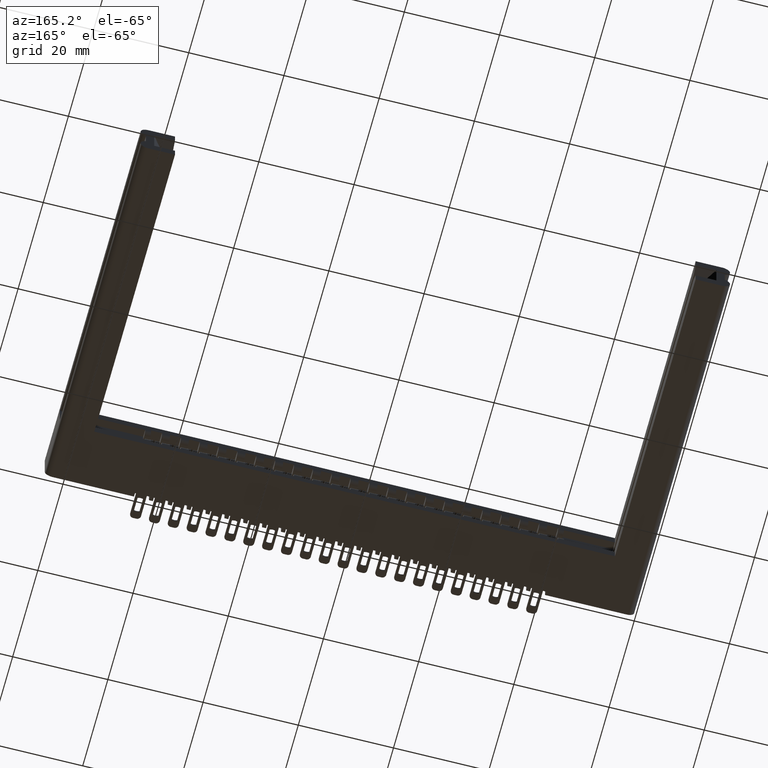
[diagram: clean part render]
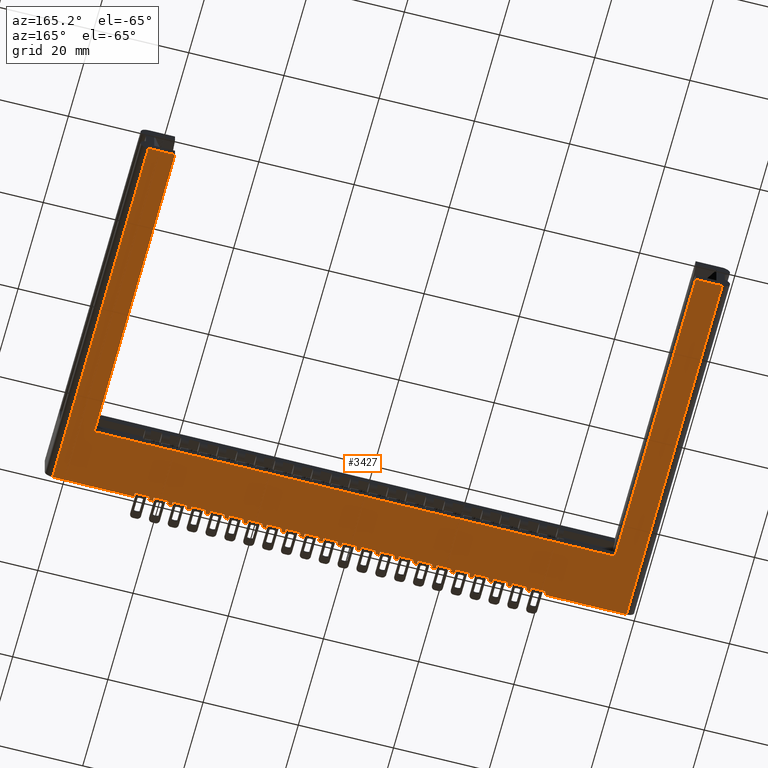
[diagram: same view with one face highlighted and labeled with its STEP entity id]
A machine part, auxiliary view. The second image highlights one B-rep face of the part: STEP entity #3427.
In plain terms, the highlighted planar face has unit normal (0, 0, 1).
Its self-contained STEP definition (entity closure, byte-faithful):
#9 = LINE ( 'NONE', #15534, #18853 ) ;
#10 = VECTOR ( 'NONE', #21759, 39.37007874015748100 ) ;
#34 = DIRECTION ( 'NONE',  ( 1.000000000000000000, 0.0000000000000000000, 0.0000000000000000000 ) ) ;
#38 = ORIENTED_EDGE ( 'NONE', *, *, #13589, .T. ) ;
#47 = EDGE_CURVE ( 'NONE', #16587, #5612, #12708, .T. ) ;
#50 = EDGE_CURVE ( 'NONE', #2057, #21541, #7181, .T. ) ;
#90 = VECTOR ( 'NONE', #13921, 39.37007874015748100 ) ;
#144 = DIRECTION ( 'NONE',  ( 0.0000000000000000000, 1.000000000000000000, 0.0000000000000000000 ) ) ;
#179 = VERTEX_POINT ( 'NONE', #19126 ) ;
#184 = ORIENTED_EDGE ( 'NONE', *, *, #21074, .T. ) ;
#192 = VECTOR ( 'NONE', #21542, 39.37007874015748100 ) ;
#265 = LINE ( 'NONE', #12909, #18017 ) ;
#268 = VECTOR ( 'NONE', #2951, 39.37007874015748100 ) ;
#275 = ORIENTED_EDGE ( 'NONE', *, *, #19168, .T. ) ;
#284 = VERTEX_POINT ( 'NONE', #6238 ) ;
#290 = LINE ( 'NONE', #4454, #14416 ) ;
#320 = CARTESIAN_POINT ( 'NONE',  ( 3.356999999999999800, 0.03100000000000001700, -0.1715000000000000100 ) ) ;
#389 = VECTOR ( 'NONE', #18729, 39.37007874015748100 ) ;
#414 = LINE ( 'NONE', #23346, #19225 ) ;
#425 = EDGE_CURVE ( 'NONE', #10057, #21695, #22118, .T. ) ;
#487 = ORIENTED_EDGE ( 'NONE', *, *, #4966, .F. ) ;
#488 = ORIENTED_EDGE ( 'NONE', *, *, #1239, .F. ) ;
#503 = ORIENTED_EDGE ( 'NONE', *, *, #5207, .F. ) ;
#508 = DIRECTION ( 'NONE',  ( -1.000000000000000000, 0.0000000000000000000, 0.0000000000000000000 ) ) ;
#581 = ORIENTED_EDGE ( 'NONE', *, *, #10927, .F. ) ;
#583 = LINE ( 'NONE', #2380, #4321 ) ;
#584 = DIRECTION ( 'NONE',  ( 1.000000000000000000, 0.0000000000000000000, 0.0000000000000000000 ) ) ;
#595 = VECTOR ( 'NONE', #15556, 39.37007874015748100 ) ;
#722 = ORIENTED_EDGE ( 'NONE', *, *, #5556, .T. ) ;
#808 = ORIENTED_EDGE ( 'NONE', *, *, #1234, .T. ) ;
#866 = LINE ( 'NONE', #18645, #5738 ) ;
#888 = DIRECTION ( 'NONE',  ( -0.0000000000000000000, -1.000000000000000000, -0.0000000000000000000 ) ) ;
#929 = CARTESIAN_POINT ( 'NONE',  ( 1.050000000000000000, 0.0000000000000000000, -0.1715000000000000100 ) ) ;
#983 = EDGE_CURVE ( 'NONE', #16258, #14576, #15287, .T. ) ;
#1029 = LINE ( 'NONE', #22072, #20352 ) ;
#1044 = VECTOR ( 'NONE', #11272, 39.37007874015748100 ) ;
#1051 = ORIENTED_EDGE ( 'NONE', *, *, #16316, .T. ) ;
#1057 = CARTESIAN_POINT ( 'NONE',  ( 0.06400000000000000100, 0.0000000000000000000, -0.1715000000000000100 ) ) ;
#1059 = EDGE_CURVE ( 'NONE', #4347, #8595, #4338, .T. ) ;
#1077 = VERTEX_POINT ( 'NONE', #22577 ) ;
#1086 = CARTESIAN_POINT ( 'NONE',  ( 3.390000000000000100, 0.0000000000000000000, -0.1715000000000000100 ) ) ;
#1174 = EDGE_CURVE ( 'NONE', #4056, #22313, #6273, .T. ) ;
#1205 = ORIENTED_EDGE ( 'NONE', *, *, #19841, .T. ) ;
#1234 = EDGE_CURVE ( 'NONE', #8595, #21107, #9993, .T. ) ;
#1236 = EDGE_CURVE ( 'NONE', #20244, #2281, #866, .T. ) ;
#1239 = EDGE_CURVE ( 'NONE', #3928, #15526, #290, .T. ) ;
#1330 = CARTESIAN_POINT ( 'NONE',  ( 2.420999999999999800, 1.506315562951245400E-017, -0.1715000000000000100 ) ) ;
#1345 = LINE ( 'NONE', #10948, #14914 ) ;
#1448 = VECTOR ( 'NONE', #14456, 39.37007874015748100 ) ;
#1449 = CARTESIAN_POINT ( 'NONE',  ( 1.050000000000000000, 0.0000000000000000000, -0.1715000000000000100 ) ) ;
#1547 = VERTEX_POINT ( 'NONE', #16701 ) ;
#1585 = ORIENTED_EDGE ( 'NONE', *, *, #2663, .T. ) ;
#1635 = VECTOR ( 'NONE', #11682, 39.37007874015748100 ) ;
#1688 = CARTESIAN_POINT ( 'NONE',  ( 0.0000000000000000000, 0.0000000000000000000, -0.1715000000000000100 ) ) ;
#1740 = CARTESIAN_POINT ( 'NONE',  ( 3.702000000000000000, 0.03100000000000000000, -0.1715000000000000100 ) ) ;
#1777 = EDGE_CURVE ( 'NONE', #22474, #11201, #3179, .T. ) ;
#1808 = DIRECTION ( 'NONE',  ( 1.000000000000000000, 0.0000000000000000000, 0.0000000000000000000 ) ) ;
#1896 = CARTESIAN_POINT ( 'NONE',  ( 0.0000000000000000000, 0.0000000000000000000, -0.1715000000000000100 ) ) ;
#1900 = DIRECTION ( 'NONE',  ( -0.0000000000000000000, -1.000000000000000000, -0.0000000000000000000 ) ) ;
#1923 = DIRECTION ( 'NONE',  ( -1.000000000000000000, -1.388134143122084800E-016, 0.0000000000000000000 ) ) ;
#1962 = ORIENTED_EDGE ( 'NONE', *, *, #11335, .F. ) ;
#1982 = VERTEX_POINT ( 'NONE', #21967 ) ;
#1984 = VERTEX_POINT ( 'NONE', #16141 ) ;
#1989 = CARTESIAN_POINT ( 'NONE',  ( 0.2844999999999999200, 0.4729999999999994200, -0.1715000000000000100 ) ) ;
#2009 = VECTOR ( 'NONE', #8829, 39.37007874015748100 ) ;
#2010 = CARTESIAN_POINT ( 'NONE',  ( 1.206000000000000000, 0.0000000000000000000, -0.1715000000000000100 ) ) ;
#2057 = VERTEX_POINT ( 'NONE', #18724 ) ;
#2083 = DIRECTION ( 'NONE',  ( 1.000000000000000000, 0.0000000000000000000, 0.0000000000000000000 ) ) ;
#2189 = ORIENTED_EDGE ( 'NONE', *, *, #1059, .T. ) ;
#2198 = VECTOR ( 'NONE', #34, 39.37007874015748100 ) ;
#2205 = EDGE_CURVE ( 'NONE', #17766, #18864, #3733, .T. ) ;
#2244 = CARTESIAN_POINT ( 'NONE',  ( 3.201000000000000100, 1.506315562951245400E-017, -0.1715000000000000100 ) ) ;
#2281 = VERTEX_POINT ( 'NONE', #10235 ) ;
#2343 = CARTESIAN_POINT ( 'NONE',  ( 3.356999999999999800, 1.506315562951245400E-017, -0.1715000000000000100 ) ) ;
#2359 = DIRECTION ( 'NONE',  ( -0.0000000000000000000, -1.000000000000000000, -0.0000000000000000000 ) ) ;
#2371 = VECTOR ( 'NONE', #22410, 39.37007874015748100 ) ;
#2380 = CARTESIAN_POINT ( 'NONE',  ( 2.141999999999999900, 0.0000000000000000000, -0.1715000000000000100 ) ) ;
#2381 = EDGE_CURVE ( 'NONE', #17636, #23169, #13208, .T. ) ;
#2384 = EDGE_CURVE ( 'NONE', #6041, #20591, #4007, .T. ) ;
#2391 = DIRECTION ( 'NONE',  ( 1.000000000000000000, 0.0000000000000000000, 0.0000000000000000000 ) ) ;
#2405 = DIRECTION ( 'NONE',  ( -0.0000000000000000000, -1.000000000000000000, -0.0000000000000000000 ) ) ;
#2464 = EDGE_CURVE ( 'NONE', #10759, #12414, #7107, .T. ) ;
#2547 = LINE ( 'NONE', #10828, #20658 ) ;
#2583 = VERTEX_POINT ( 'NONE', #17407 ) ;
#2621 = ORIENTED_EDGE ( 'NONE', *, *, #12501, .T. ) ;
#2663 = EDGE_CURVE ( 'NONE', #15805, #7168, #12325, .T. ) ;
#2755 = ORIENTED_EDGE ( 'NONE', *, *, #23164, .F. ) ;
#2839 = LINE ( 'NONE', #22222, #16918 ) ;
#2842 = CARTESIAN_POINT ( 'NONE',  ( 0.0000000000000000000, 0.0000000000000000000, -0.1715000000000000100 ) ) ;
#2869 = EDGE_CURVE ( 'NONE', #19286, #21930, #2839, .T. ) ;
#2881 = VECTOR ( 'NONE', #17381, 39.37007874015748100 ) ;
#2951 = DIRECTION ( 'NONE',  ( -1.000000000000000000, -1.920455531574183000E-015, 0.0000000000000000000 ) ) ;
#2988 = CARTESIAN_POINT ( 'NONE',  ( 0.0000000000000000000, 0.0000000000000000000, -0.1715000000000000100 ) ) ;
#3039 = CARTESIAN_POINT ( 'NONE',  ( 2.265000000000000100, 1.506315562951245400E-017, -0.1715000000000000100 ) ) ;
#3045 = VERTEX_POINT ( 'NONE', #7494 ) ;
#3106 = EDGE_CURVE ( 'NONE', #10057, #11566, #17717, .T. ) ;
#3117 = EDGE_CURVE ( 'NONE', #3924, #22568, #2547, .T. ) ;
#3127 = LINE ( 'NONE', #20669, #12320 ) ;
#3136 = VECTOR ( 'NONE', #11656, 39.37007874015748100 ) ;
#3155 = VECTOR ( 'NONE', #20763, 39.37007874015748100 ) ;
#3179 = LINE ( 'NONE', #19483, #21820 ) ;
#3239 = CARTESIAN_POINT ( 'NONE',  ( 1.953000000000000100, 1.506315562951245400E-017, -0.1715000000000000100 ) ) ;
#3243 = LINE ( 'NONE', #2244, #17312 ) ;
#3252 = CARTESIAN_POINT ( 'NONE',  ( 0.06400000000000125000, 2.999999999999999600, -0.1715000000000000100 ) ) ;
#3260 = VERTEX_POINT ( 'NONE', #19296 ) ;
#3268 = DIRECTION ( 'NONE',  ( -0.0000000000000000000, -1.000000000000000000, -0.0000000000000000000 ) ) ;
#3323 = LINE ( 'NONE', #6669, #22502 ) ;
#3427 = ADVANCED_FACE ( 'NONE', ( #13440 ), #9215, .F. ) ;
#3465 = LINE ( 'NONE', #8337, #21543 ) ;
#3488 = VECTOR ( 'NONE', #19832, 39.37007874015748100 ) ;
#3493 = ORIENTED_EDGE ( 'NONE', *, *, #14668, .T. ) ;
#3516 = VECTOR ( 'NONE', #9183, 39.37007874015748100 ) ;
#3583 = CARTESIAN_POINT ( 'NONE',  ( 3.077999999999999800, 0.0000000000000000000, -0.1715000000000000100 ) ) ;
#3603 = LINE ( 'NONE', #22170, #12211 ) ;
#3624 = VECTOR ( 'NONE', #4716, 39.37007874015748100 ) ;
#3644 = LINE ( 'NONE', #22920, #7870 ) ;
#3733 = LINE ( 'NONE', #18829, #12350 ) ;
#3801 = ORIENTED_EDGE ( 'NONE', *, *, #983, .T. ) ;
#3858 = LINE ( 'NONE', #20252, #22455 ) ;
#3859 = VERTEX_POINT ( 'NONE', #23368 ) ;
#3864 = VECTOR ( 'NONE', #17493, 39.37007874015748100 ) ;
#3924 = VERTEX_POINT ( 'NONE', #17604 ) ;
#3928 = VERTEX_POINT ( 'NONE', #17834 ) ;
#3941 = DIRECTION ( 'NONE',  ( 0.0000000000000000000, 1.000000000000000000, 0.0000000000000000000 ) ) ;
#3950 = CARTESIAN_POINT ( 'NONE',  ( 2.888999999999999800, 0.03100000000000001700, -0.1715000000000000100 ) ) ;
#3972 = ORIENTED_EDGE ( 'NONE', *, *, #22915, .F. ) ;
#4001 = DIRECTION ( 'NONE',  ( -0.0000000000000000000, -1.000000000000000000, -0.0000000000000000000 ) ) ;
#4007 = LINE ( 'NONE', #7047, #18549 ) ;
#4024 = VECTOR ( 'NONE', #7937, 39.37007874015748100 ) ;
#4036 = ORIENTED_EDGE ( 'NONE', *, *, #7797, .T. ) ;
#4039 = LINE ( 'NONE', #9486, #8849 ) ;
#4052 = DIRECTION ( 'NONE',  ( 0.0000000000000000000, 1.000000000000000000, 0.0000000000000000000 ) ) ;
#4056 = VERTEX_POINT ( 'NONE', #13286 ) ;
#4071 = DIRECTION ( 'NONE',  ( 1.000000000000000000, 0.0000000000000000000, 0.0000000000000000000 ) ) ;
#4108 = DIRECTION ( 'NONE',  ( 0.0000000000000000000, 1.000000000000000000, 0.0000000000000000000 ) ) ;
#4115 = VECTOR ( 'NONE', #20379, 39.37007874015748100 ) ;
#4142 = DIRECTION ( 'NONE',  ( 0.0000000000000000000, 1.000000000000000000, 0.0000000000000000000 ) ) ;
#4153 = ORIENTED_EDGE ( 'NONE', *, *, #5146, .T. ) ;
#4171 = ORIENTED_EDGE ( 'NONE', *, *, #9974, .T. ) ;
#4206 = CARTESIAN_POINT ( 'NONE',  ( 0.0000000000000000000, 0.0000000000000000000, -0.1715000000000000100 ) ) ;
#4321 = VECTOR ( 'NONE', #2405, 39.37007874015748100 ) ;
#4338 = LINE ( 'NONE', #21807, #4896 ) ;
#4347 = VERTEX_POINT ( 'NONE', #21371 ) ;
#4363 = ORIENTED_EDGE ( 'NONE', *, *, #13940, .T. ) ;
#4454 = CARTESIAN_POINT ( 'NONE',  ( 0.0000000000000000000, 0.0000000000000000000, -0.1715000000000000100 ) ) ;
#4472 = ORIENTED_EDGE ( 'NONE', *, *, #15651, .F. ) ;
#4480 = VERTEX_POINT ( 'NONE', #18643 ) ;
#4520 = ORIENTED_EDGE ( 'NONE', *, *, #3106, .T. ) ;
#4598 = LINE ( 'NONE', #8480, #268 ) ;
#4674 = VECTOR ( 'NONE', #1900, 39.37007874015748100 ) ;
#4716 = DIRECTION ( 'NONE',  ( -0.0000000000000000000, -1.000000000000000000, -0.0000000000000000000 ) ) ;
#4749 = VERTEX_POINT ( 'NONE', #14048 ) ;
#4754 = LINE ( 'NONE', #6034, #23273 ) ;
#4796 = VERTEX_POINT ( 'NONE', #13747 ) ;
#4801 = VERTEX_POINT ( 'NONE', #12841 ) ;
#4809 = CARTESIAN_POINT ( 'NONE',  ( 1.017000000000000100, 0.03100000000000001700, -0.1715000000000000100 ) ) ;
#4826 = LINE ( 'NONE', #9021, #23344 ) ;
#4839 = DIRECTION ( 'NONE',  ( 1.000000000000000000, 0.0000000000000000000, 0.0000000000000000000 ) ) ;
#4842 = VECTOR ( 'NONE', #21982, 39.37007874015748100 ) ;
#4847 = ORIENTED_EDGE ( 'NONE', *, *, #14552, .F. ) ;
#4896 = VECTOR ( 'NONE', #20919, 39.37007874015748100 ) ;
#4966 = EDGE_CURVE ( 'NONE', #11983, #19050, #4039, .T. ) ;
#4980 = LINE ( 'NONE', #16389, #14227 ) ;
#5007 = LINE ( 'NONE', #17570, #3864 ) ;
#5030 = ORIENTED_EDGE ( 'NONE', *, *, #12800, .T. ) ;
#5053 = LINE ( 'NONE', #7612, #9314 ) ;
#5062 = CARTESIAN_POINT ( 'NONE',  ( 2.298000000000000000, 0.0000000000000000000, -0.1715000000000000100 ) ) ;
#5146 = EDGE_CURVE ( 'NONE', #14221, #17182, #583, .T. ) ;
#5176 = VECTOR ( 'NONE', #22595, 39.37007874015748100 ) ;
#5193 = CARTESIAN_POINT ( 'NONE',  ( 3.980999999999999400, 0.03100000000000001700, -0.1715000000000000100 ) ) ;
#5207 = EDGE_CURVE ( 'NONE', #10943, #17103, #9126, .T. ) ;
#5238 = EDGE_CURVE ( 'NONE', #3045, #22313, #21801, .T. ) ;
#5263 = LINE ( 'NONE', #19063, #389 ) ;
#5279 = DIRECTION ( 'NONE',  ( 1.000000000000000000, 0.0000000000000000000, 0.0000000000000000000 ) ) ;
#5556 = EDGE_CURVE ( 'NONE', #12489, #17865, #12905, .T. ) ;
#5562 = VERTEX_POINT ( 'NONE', #12726 ) ;
#5612 = VERTEX_POINT ( 'NONE', #9232 ) ;
#5630 = ORIENTED_EDGE ( 'NONE', *, *, #1236, .T. ) ;
#5678 = ORIENTED_EDGE ( 'NONE', *, *, #21407, .T. ) ;
#5738 = VECTOR ( 'NONE', #17588, 39.37007874015748100 ) ;
#5773 = CARTESIAN_POINT ( 'NONE',  ( 0.0000000000000000000, 0.0000000000000000000, -0.1715000000000000100 ) ) ;
#5802 = ORIENTED_EDGE ( 'NONE', *, *, #13171, .T. ) ;
#5806 = VECTOR ( 'NONE', #11562, 39.37007874015748100 ) ;
#5830 = CARTESIAN_POINT ( 'NONE',  ( 1.986000000000000000, 0.0000000000000000000, -0.1715000000000000100 ) ) ;
#5885 = EDGE_CURVE ( 'NONE', #15757, #17182, #19328, .T. ) ;
#5983 = LINE ( 'NONE', #2988, #15808 ) ;
#5994 = VECTOR ( 'NONE', #2391, 39.37007874015748100 ) ;
#6010 = VERTEX_POINT ( 'NONE', #20359 ) ;
#6019 = DIRECTION ( 'NONE',  ( 1.000000000000000000, 0.0000000000000000000, 0.0000000000000000000 ) ) ;
#6034 = CARTESIAN_POINT ( 'NONE',  ( 1.796999999999999900, 0.03100000000000001700, -0.1715000000000000100 ) ) ;
#6041 = VERTEX_POINT ( 'NONE', #20139 ) ;
#6065 = EDGE_CURVE ( 'NONE', #12733, #2583, #15494, .T. ) ;
#6219 = VERTEX_POINT ( 'NONE', #17857 ) ;
#6238 = CARTESIAN_POINT ( 'NONE',  ( 3.824999999999999700, 0.03100000000000001700, -0.1715000000000000100 ) ) ;
#6273 = LINE ( 'NONE', #22909, #1448 ) ;
#6284 = CARTESIAN_POINT ( 'NONE',  ( 0.8610000000000001000, 1.506315562951245400E-017, -0.1715000000000000100 ) ) ;
#6327 = EDGE_CURVE ( 'NONE', #19329, #12733, #18230, .T. ) ;
#6338 = VERTEX_POINT ( 'NONE', #15389 ) ;
#6400 = LINE ( 'NONE', #12206, #15681 ) ;
#6409 = CARTESIAN_POINT ( 'NONE',  ( 0.2844999999999999200, 3.000000000000000400, -0.1715000000000000100 ) ) ;
#6436 = ORIENTED_EDGE ( 'NONE', *, *, #20131, .F. ) ;
#6483 = DIRECTION ( 'NONE',  ( 1.000000000000000000, 0.0000000000000000000, 0.0000000000000000000 ) ) ;
#6493 = ORIENTED_EDGE ( 'NONE', *, *, #2464, .T. ) ;
#6497 = CARTESIAN_POINT ( 'NONE',  ( 3.512999999999999900, 1.506315562951245400E-017, -0.1715000000000000100 ) ) ;
#6523 = VECTOR ( 'NONE', #21654, 39.37007874015748100 ) ;
#6599 = DIRECTION ( 'NONE',  ( 0.0000000000000000000, 1.000000000000000000, 0.0000000000000000000 ) ) ;
#6629 = CARTESIAN_POINT ( 'NONE',  ( 1.796999999999999900, 1.506315562951245400E-017, -0.1715000000000000100 ) ) ;
#6637 = EDGE_CURVE ( 'NONE', #13574, #4749, #16304, .T. ) ;
#6666 = EDGE_CURVE ( 'NONE', #21930, #9020, #20366, .T. ) ;
#6669 = CARTESIAN_POINT ( 'NONE',  ( 1.796999999999999900, 1.506315562951245400E-017, -0.1715000000000000100 ) ) ;
#6795 = VECTOR ( 'NONE', #19796, 39.37007874015748100 ) ;
#6846 = LINE ( 'NONE', #9067, #20721 ) ;
#6861 = VERTEX_POINT ( 'NONE', #9209 ) ;
#6873 = DIRECTION ( 'NONE',  ( -0.0000000000000000000, -1.000000000000000000, -0.0000000000000000000 ) ) ;
#6877 = DIRECTION ( 'NONE',  ( 1.000000000000000000, 0.0000000000000000000, 0.0000000000000000000 ) ) ;
#6901 = DIRECTION ( 'NONE',  ( -0.0000000000000000000, -1.000000000000000000, -0.0000000000000000000 ) ) ;
#6920 = VERTEX_POINT ( 'NONE', #7836 ) ;
#6942 = EDGE_CURVE ( 'NONE', #17506, #4796, #5053, .T. ) ;
#6944 = CARTESIAN_POINT ( 'NONE',  ( 3.545999999999999800, 0.03100000000000000000, -0.1715000000000000100 ) ) ;
#6982 = EDGE_CURVE ( 'NONE', #10715, #5612, #22512, .T. ) ;
#6983 = ORIENTED_EDGE ( 'NONE', *, *, #21989, .F. ) ;
#6999 = LINE ( 'NONE', #1896, #2198 ) ;
#7007 = ORIENTED_EDGE ( 'NONE', *, *, #11617, .T. ) ;
#7013 = DIRECTION ( 'NONE',  ( -0.0000000000000000000, -1.000000000000000000, -0.0000000000000000000 ) ) ;
#7047 = CARTESIAN_POINT ( 'NONE',  ( 1.173000000000000000, 1.506315562951245400E-017, -0.1715000000000000100 ) ) ;
#7095 = CARTESIAN_POINT ( 'NONE',  ( 2.733000000000000100, 0.03100000000000001700, -0.1715000000000000100 ) ) ;
#7097 = EDGE_CURVE ( 'NONE', #1982, #18864, #15710, .T. ) ;
#7107 = LINE ( 'NONE', #19334, #16371 ) ;
#7168 = VERTEX_POINT ( 'NONE', #3252 ) ;
#7181 = LINE ( 'NONE', #22487, #2371 ) ;
#7266 = LINE ( 'NONE', #4206, #16548 ) ;
#7286 = LINE ( 'NONE', #15433, #21699 ) ;
#7324 = CARTESIAN_POINT ( 'NONE',  ( 2.298000000000000000, 0.0000000000000000000, -0.1715000000000000100 ) ) ;
#7327 = CARTESIAN_POINT ( 'NONE',  ( 3.857999999999999700, 0.0000000000000000000, -0.1715000000000000100 ) ) ;
#7331 = CARTESIAN_POINT ( 'NONE',  ( 4.590500000000000500, 3.000000000000000400, -0.1715000000000000100 ) ) ;
#7372 = CARTESIAN_POINT ( 'NONE',  ( 2.454000000000000200, 0.0000000000000000000, -0.1715000000000000100 ) ) ;
#7388 = VECTOR ( 'NONE', #3268, 39.37007874015748100 ) ;
#7438 = CARTESIAN_POINT ( 'NONE',  ( 3.201000000000000100, 1.506315562951245400E-017, -0.1715000000000000100 ) ) ;
#7439 = CARTESIAN_POINT ( 'NONE',  ( 1.329000000000000000, 0.03100000000000001700, -0.1715000000000000100 ) ) ;
#7452 = VECTOR ( 'NONE', #13418, 39.37007874015748100 ) ;
#7464 = ORIENTED_EDGE ( 'NONE', *, *, #10150, .F. ) ;
#7494 = CARTESIAN_POINT ( 'NONE',  ( 1.050000000000000000, 0.03100000000000000000, -0.1715000000000000100 ) ) ;
#7547 = ORIENTED_EDGE ( 'NONE', *, *, #2869, .T. ) ;
#7599 = CARTESIAN_POINT ( 'NONE',  ( 0.0000000000000000000, 0.0000000000000000000, -0.1715000000000000100 ) ) ;
#7605 = CARTESIAN_POINT ( 'NONE',  ( 2.577000000000000000, 0.03100000000000001700, -0.1715000000000000100 ) ) ;
#7607 = DIRECTION ( 'NONE',  ( 1.000000000000000000, 0.0000000000000000000, 0.0000000000000000000 ) ) ;
#7612 = CARTESIAN_POINT ( 'NONE',  ( 0.0000000000000000000, 0.0000000000000000000, -0.1715000000000000100 ) ) ;
#7685 = ORIENTED_EDGE ( 'NONE', *, *, #18252, .T. ) ;
#7699 = ORIENTED_EDGE ( 'NONE', *, *, #7097, .F. ) ;
#7710 = CARTESIAN_POINT ( 'NONE',  ( 3.980999999999999400, 1.506315562951245400E-017, -0.1715000000000000100 ) ) ;
#7746 = CARTESIAN_POINT ( 'NONE',  ( 2.766000000000000000, 0.03100000000000000000, -0.1715000000000000100 ) ) ;
#7755 = CARTESIAN_POINT ( 'NONE',  ( 3.980999999999999400, 0.03100000000000001700, -0.1715000000000000100 ) ) ;
#7797 = EDGE_CURVE ( 'NONE', #1077, #14221, #5007, .T. ) ;
#7836 = CARTESIAN_POINT ( 'NONE',  ( 3.077999999999999800, 0.0000000000000000000, -0.1715000000000000100 ) ) ;
#7870 = VECTOR ( 'NONE', #14187, 39.37007874015748100 ) ;
#7937 = DIRECTION ( 'NONE',  ( -0.0000000000000000000, -1.000000000000000000, -0.0000000000000000000 ) ) ;
#7944 = CARTESIAN_POINT ( 'NONE',  ( 1.640999999999999800, 0.03100000000000001700, -0.1715000000000000100 ) ) ;
#8005 = CARTESIAN_POINT ( 'NONE',  ( 1.673999999999999900, 0.0000000000000000000, -0.1715000000000000100 ) ) ;
#8028 = DIRECTION ( 'NONE',  ( -0.0000000000000000000, -1.000000000000000000, -0.0000000000000000000 ) ) ;
#8123 = VERTEX_POINT ( 'NONE', #6629 ) ;
#8322 = VECTOR ( 'NONE', #12863, 39.37007874015748100 ) ;
#8337 = CARTESIAN_POINT ( 'NONE',  ( 2.733000000000000100, 1.506315562951245400E-017, -0.1715000000000000100 ) ) ;
#8400 = VECTOR ( 'NONE', #4052, 39.37007874015748100 ) ;
#8443 = VERTEX_POINT ( 'NONE', #320 ) ;
#8460 = VECTOR ( 'NONE', #15472, 39.37007874015748100 ) ;
#8480 = CARTESIAN_POINT ( 'NONE',  ( 0.2844999999999999200, 3.000000000000000400, -0.1715000000000000100 ) ) ;
#8594 = CARTESIAN_POINT ( 'NONE',  ( 1.796999999999999900, 0.03100000000000001700, -0.1715000000000000100 ) ) ;
#8595 = VERTEX_POINT ( 'NONE', #16877 ) ;
#8668 = CARTESIAN_POINT ( 'NONE',  ( 0.06400000000000000100, -2.511579562175844200E-017, -0.1715000000000000100 ) ) ;
#8687 = CARTESIAN_POINT ( 'NONE',  ( 3.668999999999999600, 0.03100000000000001700, -0.1715000000000000100 ) ) ;
#8779 = VERTEX_POINT ( 'NONE', #6409 ) ;
#8812 = VECTOR ( 'NONE', #2083, 39.37007874015748100 ) ;
#8829 = DIRECTION ( 'NONE',  ( -1.000000000000000000, -1.388134143122084800E-016, 0.0000000000000000000 ) ) ;
#8832 = LINE ( 'NONE', #9586, #22614 ) ;
#8836 = LINE ( 'NONE', #9803, #4024 ) ;
#8849 = VECTOR ( 'NONE', #9481, 39.37007874015748100 ) ;
#8864 = ORIENTED_EDGE ( 'NONE', *, *, #14740, .T. ) ;
#8872 = EDGE_CURVE ( 'NONE', #16166, #1077, #15376, .T. ) ;
#8914 = ORIENTED_EDGE ( 'NONE', *, *, #18449, .T. ) ;
#8974 = DIRECTION ( 'NONE',  ( -1.000000000000000000, -1.388134143122084800E-016, 0.0000000000000000000 ) ) ;
#9020 = VERTEX_POINT ( 'NONE', #20375 ) ;
#9021 = CARTESIAN_POINT ( 'NONE',  ( 0.0000000000000000000, 0.0000000000000000000, -0.1715000000000000100 ) ) ;
#9052 = EDGE_CURVE ( 'NONE', #4056, #19329, #5263, .T. ) ;
#9055 = VERTEX_POINT ( 'NONE', #18583 ) ;
#9057 = DIRECTION ( 'NONE',  ( -1.000000000000000000, -1.388134143122084800E-016, 0.0000000000000000000 ) ) ;
#9067 = CARTESIAN_POINT ( 'NONE',  ( 1.173000000000000000, 0.03100000000000001700, -0.1715000000000000100 ) ) ;
#9126 = LINE ( 'NONE', #1688, #22338 ) ;
#9136 = ORIENTED_EDGE ( 'NONE', *, *, #22746, .T. ) ;
#9177 = DIRECTION ( 'NONE',  ( -0.0000000000000000000, -1.000000000000000000, -0.0000000000000000000 ) ) ;
#9183 = DIRECTION ( 'NONE',  ( 0.0000000000000000000, -1.000000000000000000, 0.0000000000000000000 ) ) ;
#9209 = CARTESIAN_POINT ( 'NONE',  ( 4.811000000000000800, 3.000000000000000400, -0.1715000000000000100 ) ) ;
#9215 = PLANE ( 'NONE',  #17219 ) ;
#9232 = CARTESIAN_POINT ( 'NONE',  ( 3.857999999999999700, 0.0000000000000000000, -0.1715000000000000100 ) ) ;
#9310 = EDGE_CURVE ( 'NONE', #9055, #1547, #20008, .T. ) ;
#9314 = VECTOR ( 'NONE', #7607, 39.37007874015748100 ) ;
#9328 = VERTEX_POINT ( 'NONE', #13826 ) ;
#9411 = ORIENTED_EDGE ( 'NONE', *, *, #23167, .T. ) ;
#9450 = CARTESIAN_POINT ( 'NONE',  ( 2.888999999999999800, 1.506315562951245400E-017, -0.1715000000000000100 ) ) ;
#9481 = DIRECTION ( 'NONE',  ( 1.000000000000000000, 0.0000000000000000000, 0.0000000000000000000 ) ) ;
#9486 = CARTESIAN_POINT ( 'NONE',  ( 0.0000000000000000000, 0.0000000000000000000, -0.1715000000000000100 ) ) ;
#9490 = DIRECTION ( 'NONE',  ( -0.0000000000000000000, -1.000000000000000000, -0.0000000000000000000 ) ) ;
#9495 = ORIENTED_EDGE ( 'NONE', *, *, #9310, .F. ) ;
#9499 = CARTESIAN_POINT ( 'NONE',  ( 3.857999999999999700, 0.03100000000000000000, -0.1715000000000000100 ) ) ;
#9509 = DIRECTION ( 'NONE',  ( -1.000000000000000000, -1.388134143122084800E-016, 0.0000000000000000000 ) ) ;
#9586 = CARTESIAN_POINT ( 'NONE',  ( 2.609999999999999900, 0.0000000000000000000, -0.1715000000000000100 ) ) ;
#9614 = ORIENTED_EDGE ( 'NONE', *, *, #13296, .F. ) ;
#9639 = CARTESIAN_POINT ( 'NONE',  ( 0.0000000000000000000, 0.0000000000000000000, -0.1715000000000000100 ) ) ;
#9714 = CARTESIAN_POINT ( 'NONE',  ( 3.356999999999999800, 0.03100000000000001700, -0.1715000000000000100 ) ) ;
#9785 = LINE ( 'NONE', #6497, #15899 ) ;
#9803 = CARTESIAN_POINT ( 'NONE',  ( 2.922000000000000200, 0.0000000000000000000, -0.1715000000000000100 ) ) ;
#9816 = VECTOR ( 'NONE', #3941, 39.37007874015748100 ) ;
#9974 = EDGE_CURVE ( 'NONE', #2281, #22416, #14475, .T. ) ;
#9993 = LINE ( 'NONE', #18737, #5176 ) ;
#9997 = VECTOR ( 'NONE', #144, 39.37007874015748100 ) ;
#10003 = ORIENTED_EDGE ( 'NONE', *, *, #18943, .T. ) ;
#10057 = VERTEX_POINT ( 'NONE', #21030 ) ;
#10090 = DIRECTION ( 'NONE',  ( 1.000000000000000000, 0.0000000000000000000, 0.0000000000000000000 ) ) ;
#10150 = EDGE_CURVE ( 'NONE', #16258, #21541, #15323, .T. ) ;
#10213 = VERTEX_POINT ( 'NONE', #7438 ) ;
#10235 = CARTESIAN_POINT ( 'NONE',  ( 1.206000000000000000, 0.03100000000000000000, -0.1715000000000000100 ) ) ;
#10243 = CARTESIAN_POINT ( 'NONE',  ( 2.733000000000000100, 1.506315562951245400E-017, -0.1715000000000000100 ) ) ;
#10289 = CARTESIAN_POINT ( 'NONE',  ( 0.0000000000000000000, 0.0000000000000000000, -0.1715000000000000100 ) ) ;
#10300 = LINE ( 'NONE', #7324, #19615 ) ;
#10303 = CARTESIAN_POINT ( 'NONE',  ( 1.829999999999999800, 0.0000000000000000000, -0.1715000000000000100 ) ) ;
#10306 = LINE ( 'NONE', #16882, #595 ) ;
#10338 = CARTESIAN_POINT ( 'NONE',  ( 2.577000000000000000, 1.506315562951245400E-017, -0.1715000000000000100 ) ) ;
#10340 = VECTOR ( 'NONE', #15009, 39.37007874015748100 ) ;
#10412 = VERTEX_POINT ( 'NONE', #20512 ) ;
#10452 = CARTESIAN_POINT ( 'NONE',  ( 1.953000000000000100, 1.506315562951245400E-017, -0.1715000000000000100 ) ) ;
#10472 = CARTESIAN_POINT ( 'NONE',  ( 2.733000000000000100, 0.03100000000000001700, -0.1715000000000000100 ) ) ;
#10509 = EDGE_CURVE ( 'NONE', #12957, #16070, #10306, .T. ) ;
#10562 = EDGE_CURVE ( 'NONE', #10943, #8443, #9, .T. ) ;
#10567 = LINE ( 'NONE', #9639, #15536 ) ;
#10600 = ORIENTED_EDGE ( 'NONE', *, *, #13099, .F. ) ;
#10667 = DIRECTION ( 'NONE',  ( -1.000000000000000000, -1.388134143122084800E-016, 0.0000000000000000000 ) ) ;
#10678 = LINE ( 'NONE', #13154, #19189 ) ;
#10715 = VERTEX_POINT ( 'NONE', #9499 ) ;
#10720 = CARTESIAN_POINT ( 'NONE',  ( 1.673999999999999900, 0.0000000000000000000, -0.1715000000000000100 ) ) ;
#10734 = ORIENTED_EDGE ( 'NONE', *, *, #2384, .T. ) ;
#10754 = VECTOR ( 'NONE', #5279, 39.37007874015748100 ) ;
#10759 = VERTEX_POINT ( 'NONE', #7944 ) ;
#10828 = CARTESIAN_POINT ( 'NONE',  ( 3.234000000000000000, 0.0000000000000000000, -0.1715000000000000100 ) ) ;
#10863 = ORIENTED_EDGE ( 'NONE', *, *, #6637, .T. ) ;
#10875 = LINE ( 'NONE', #2842, #5994 ) ;
#10919 = CARTESIAN_POINT ( 'NONE',  ( 1.953000000000000100, 0.03100000000000001700, -0.1715000000000000100 ) ) ;
#10927 = EDGE_CURVE ( 'NONE', #10412, #11201, #10875, .T. ) ;
#10943 = VERTEX_POINT ( 'NONE', #2343 ) ;
#10948 = CARTESIAN_POINT ( 'NONE',  ( 2.420999999999999800, 0.03100000000000001700, -0.1715000000000000100 ) ) ;
#10955 = DIRECTION ( 'NONE',  ( -1.000000000000000000, -1.388134143122084800E-016, 0.0000000000000000000 ) ) ;
#10979 = CARTESIAN_POINT ( 'NONE',  ( 1.986000000000000000, 0.0000000000000000000, -0.1715000000000000100 ) ) ;
#11007 = CARTESIAN_POINT ( 'NONE',  ( 2.766000000000000000, 0.0000000000000000000, -0.1715000000000000100 ) ) ;
#11036 = DIRECTION ( 'NONE',  ( -1.000000000000000000, -1.388134143122084800E-016, 0.0000000000000000000 ) ) ;
#11067 = ORIENTED_EDGE ( 'NONE', *, *, #3117, .T. ) ;
#11094 = ORIENTED_EDGE ( 'NONE', *, *, #20898, .T. ) ;
#11117 = CARTESIAN_POINT ( 'NONE',  ( 1.485000000000000100, 1.506315562951245400E-017, -0.1715000000000000100 ) ) ;
#11130 = EDGE_CURVE ( 'NONE', #19224, #2583, #10567, .T. ) ;
#11201 = VERTEX_POINT ( 'NONE', #7372 ) ;
#11214 = DIRECTION ( 'NONE',  ( 0.0000000000000000000, 1.000000000000000000, 0.0000000000000000000 ) ) ;
#11272 = DIRECTION ( 'NONE',  ( -0.0000000000000000000, -1.000000000000000000, -0.0000000000000000000 ) ) ;
#11276 = DIRECTION ( 'NONE',  ( 1.000000000000000000, 0.0000000000000000000, 0.0000000000000000000 ) ) ;
#11335 = EDGE_CURVE ( 'NONE', #15805, #21107, #16366, .T. ) ;
#11434 = EDGE_LOOP ( 'NONE', ( #22418, #14210, #9495, #5802, #1205, #16462, #7464, #3801, #14466, #20774, #17006, #3493, #38, #19961, #17264, #4363, #19679, #16144, #7699, #8864, #12861, #11094, #503, #23332, #21710, #11067, #9614, #17677, #10863, #21908, #20959, #9411, #16507, #275, #22732, #17776, #15118, #22890, #16803, #7685, #20742, #17894, #15300, #4520, #11748, #15466, #581, #13554, #2621, #10003, #10600, #20448, #4036, #4153, #22481, #13924, #722, #13775, #487, #15760, #7007, #12741, #19052, #20941, #5678, #9136, #488, #12872, #6493, #5030, #6983, #17655, #7547, #21937, #13883, #1051, #5630, #4171, #6436, #10734, #8914, #12157, #12865, #14500, #15999, #16615, #18194, #184, #2189, #808, #1962, #1585, #3972, #2755, #4847, #4472 ) ) ;
#11453 = VERTEX_POINT ( 'NONE', #18302 ) ;
#11520 = CARTESIAN_POINT ( 'NONE',  ( 1.329000000000000000, 1.506315562951245400E-017, -0.1715000000000000100 ) ) ;
#11544 = CARTESIAN_POINT ( 'NONE',  ( 2.109000000000000000, 0.03100000000000001700, -0.1715000000000000100 ) ) ;
#11562 = DIRECTION ( 'NONE',  ( -1.000000000000000000, -1.388134143122084800E-016, 0.0000000000000000000 ) ) ;
#11565 = CARTESIAN_POINT ( 'NONE',  ( 1.361999999999999900, 0.0000000000000000000, -0.1715000000000000100 ) ) ;
#11566 = VERTEX_POINT ( 'NONE', #13162 ) ;
#11617 = EDGE_CURVE ( 'NONE', #21256, #6010, #14963, .T. ) ;
#11656 = DIRECTION ( 'NONE',  ( -1.000000000000000000, -1.388134143122084800E-016, 0.0000000000000000000 ) ) ;
#11682 = DIRECTION ( 'NONE',  ( -1.000000000000000000, -1.388134143122084800E-016, 0.0000000000000000000 ) ) ;
#11735 = LINE ( 'NONE', #5193, #2009 ) ;
#11748 = ORIENTED_EDGE ( 'NONE', *, *, #16830, .T. ) ;
#11798 = CARTESIAN_POINT ( 'NONE',  ( 3.201000000000000100, 0.03100000000000001700, -0.1715000000000000100 ) ) ;
#11896 = CARTESIAN_POINT ( 'NONE',  ( 1.518000000000000000, 0.0000000000000000000, -0.1715000000000000100 ) ) ;
#11983 = VERTEX_POINT ( 'NONE', #3239 ) ;
#12114 = VECTOR ( 'NONE', #22743, 39.37007874015748100 ) ;
#12142 = LINE ( 'NONE', #13654, #19999 ) ;
#12157 = ORIENTED_EDGE ( 'NONE', *, *, #5238, .T. ) ;
#12206 = CARTESIAN_POINT ( 'NONE',  ( 3.824999999999999700, 0.03100000000000001700, -0.1715000000000000100 ) ) ;
#12211 = VECTOR ( 'NONE', #508, 39.37007874015748100 ) ;
#12260 = CARTESIAN_POINT ( 'NONE',  ( 1.953000000000000100, 0.03100000000000001700, -0.1715000000000000100 ) ) ;
#12320 = VECTOR ( 'NONE', #22404, 39.37007874015748100 ) ;
#12324 = LINE ( 'NONE', #20144, #21218 ) ;
#12325 = LINE ( 'NONE', #8668, #21775 ) ;
#12350 = VECTOR ( 'NONE', #13047, 39.37007874015748100 ) ;
#12367 = DIRECTION ( 'NONE',  ( 0.0000000000000000000, 1.000000000000000000, 0.0000000000000000000 ) ) ;
#12414 = VERTEX_POINT ( 'NONE', #18900 ) ;
#12435 = CARTESIAN_POINT ( 'NONE',  ( 3.824999999999999700, 1.506315562951245400E-017, -0.1715000000000000100 ) ) ;
#12463 = DIRECTION ( 'NONE',  ( -1.000000000000000000, -1.388134143122084800E-016, 0.0000000000000000000 ) ) ;
#12489 = VERTEX_POINT ( 'NONE', #13267 ) ;
#12501 = EDGE_CURVE ( 'NONE', #9328, #6219, #1345, .T. ) ;
#12591 = CARTESIAN_POINT ( 'NONE',  ( 3.390000000000000100, 0.03100000000000000000, -0.1715000000000000100 ) ) ;
#12639 = LINE ( 'NONE', #15607, #2881 ) ;
#12708 = LINE ( 'NONE', #20255, #12114 ) ;
#12726 = CARTESIAN_POINT ( 'NONE',  ( 4.590500000000000500, 3.000000000000000400, -0.1715000000000000100 ) ) ;
#12733 = VERTEX_POINT ( 'NONE', #13650 ) ;
#12741 = ORIENTED_EDGE ( 'NONE', *, *, #18783, .T. ) ;
#12774 = CARTESIAN_POINT ( 'NONE',  ( 1.986000000000000000, 0.03100000000000000000, -0.1715000000000000100 ) ) ;
#12780 = DIRECTION ( 'NONE',  ( 0.0000000000000000000, 1.000000000000000000, 0.0000000000000000000 ) ) ;
#12800 = EDGE_CURVE ( 'NONE', #12414, #14726, #18202, .T. ) ;
#12841 = CARTESIAN_POINT ( 'NONE',  ( 3.044999999999999900, 0.03100000000000001700, -0.1715000000000000100 ) ) ;
#12861 = ORIENTED_EDGE ( 'NONE', *, *, #19593, .T. ) ;
#12863 = DIRECTION ( 'NONE',  ( -0.0000000000000000000, -1.000000000000000000, -0.0000000000000000000 ) ) ;
#12865 = ORIENTED_EDGE ( 'NONE', *, *, #1174, .F. ) ;
#12872 = ORIENTED_EDGE ( 'NONE', *, *, #21748, .T. ) ;
#12905 = LINE ( 'NONE', #11544, #3136 ) ;
#12909 = CARTESIAN_POINT ( 'NONE',  ( 3.512999999999999900, 0.03100000000000001700, -0.1715000000000000100 ) ) ;
#12957 = VERTEX_POINT ( 'NONE', #17898 ) ;
#13015 = DIRECTION ( 'NONE',  ( 3.924343065899756400E-016, 1.000000000000000000, -0.0000000000000000000 ) ) ;
#13047 = DIRECTION ( 'NONE',  ( -0.0000000000000000000, -1.000000000000000000, -0.0000000000000000000 ) ) ;
#13099 = EDGE_CURVE ( 'NONE', #16166, #15473, #6999, .T. ) ;
#13109 = VECTOR ( 'NONE', #6901, 39.37007874015748100 ) ;
#13154 = CARTESIAN_POINT ( 'NONE',  ( 2.766000000000000000, 0.0000000000000000000, -0.1715000000000000100 ) ) ;
#13162 = CARTESIAN_POINT ( 'NONE',  ( 2.577000000000000000, 0.03100000000000001700, -0.1715000000000000100 ) ) ;
#13171 = EDGE_CURVE ( 'NONE', #9055, #15172, #15158, .T. ) ;
#13207 = LINE ( 'NONE', #1330, #22063 ) ;
#13208 = LINE ( 'NONE', #7599, #22064 ) ;
#13233 = EDGE_CURVE ( 'NONE', #17506, #17986, #13381, .T. ) ;
#13267 = CARTESIAN_POINT ( 'NONE',  ( 2.109000000000000000, 0.03100000000000001700, -0.1715000000000000100 ) ) ;
#13286 = CARTESIAN_POINT ( 'NONE',  ( 1.017000000000000100, 1.506315562951245400E-017, -0.1715000000000000100 ) ) ;
#13291 = EDGE_CURVE ( 'NONE', #6861, #5562, #3603, .T. ) ;
#13296 = EDGE_CURVE ( 'NONE', #10213, #22568, #7266, .T. ) ;
#13381 = LINE ( 'NONE', #9450, #8400 ) ;
#13418 = DIRECTION ( 'NONE',  ( 0.0000000000000000000, 1.000000000000000000, 0.0000000000000000000 ) ) ;
#13440 = FACE_OUTER_BOUND ( 'NONE', #11434, .T. ) ;
#13554 = ORIENTED_EDGE ( 'NONE', *, *, #22944, .T. ) ;
#13574 = VERTEX_POINT ( 'NONE', #21081 ) ;
#13589 = EDGE_CURVE ( 'NONE', #284, #17229, #6400, .T. ) ;
#13630 = VECTOR ( 'NONE', #20299, 39.37007874015748100 ) ;
#13650 = CARTESIAN_POINT ( 'NONE',  ( 0.8940000000000001300, 0.03100000000000000000, -0.1715000000000000100 ) ) ;
#13654 = CARTESIAN_POINT ( 'NONE',  ( 3.824999999999999700, 1.506315562951245400E-017, -0.1715000000000000100 ) ) ;
#13747 = CARTESIAN_POINT ( 'NONE',  ( 2.922000000000000200, 0.0000000000000000000, -0.1715000000000000100 ) ) ;
#13775 = ORIENTED_EDGE ( 'NONE', *, *, #15632, .T. ) ;
#13786 = DIRECTION ( 'NONE',  ( 0.0000000000000000000, 1.000000000000000000, 0.0000000000000000000 ) ) ;
#13826 = CARTESIAN_POINT ( 'NONE',  ( 2.420999999999999800, 0.03100000000000001700, -0.1715000000000000100 ) ) ;
#13858 = CARTESIAN_POINT ( 'NONE',  ( 3.980999999999999400, 1.506315562951245400E-017, -0.1715000000000000100 ) ) ;
#13883 = ORIENTED_EDGE ( 'NONE', *, *, #18709, .F. ) ;
#13921 = DIRECTION ( 'NONE',  ( 1.000000000000000000, 0.0000000000000000000, 0.0000000000000000000 ) ) ;
#13924 = ORIENTED_EDGE ( 'NONE', *, *, #19233, .T. ) ;
#13940 = EDGE_CURVE ( 'NONE', #12957, #18015, #3858, .T. ) ;
#13994 = CARTESIAN_POINT ( 'NONE',  ( 0.0000000000000000000, 0.0000000000000000000, -0.1715000000000000100 ) ) ;
#14048 = CARTESIAN_POINT ( 'NONE',  ( 3.077999999999999800, 0.03100000000000000000, -0.1715000000000000100 ) ) ;
#14108 = LINE ( 'NONE', #19584, #23378 ) ;
#14187 = DIRECTION ( 'NONE',  ( -1.000000000000000000, -1.388134143122084800E-016, 0.0000000000000000000 ) ) ;
#14210 = ORIENTED_EDGE ( 'NONE', *, *, #19434, .T. ) ;
#14221 = VERTEX_POINT ( 'NONE', #16069 ) ;
#14227 = VECTOR ( 'NONE', #8974, 39.37007874015748100 ) ;
#14241 = LINE ( 'NONE', #22224, #18415 ) ;
#14336 = EDGE_CURVE ( 'NONE', #17986, #19757, #4980, .T. ) ;
#14416 = VECTOR ( 'NONE', #6483, 39.37007874015748100 ) ;
#14456 = DIRECTION ( 'NONE',  ( 1.000000000000000000, 0.0000000000000000000, 0.0000000000000000000 ) ) ;
#14466 = ORIENTED_EDGE ( 'NONE', *, *, #19470, .T. ) ;
#14475 = LINE ( 'NONE', #2010, #4674 ) ;
#14500 = ORIENTED_EDGE ( 'NONE', *, *, #9052, .T. ) ;
#14520 = EDGE_CURVE ( 'NONE', #19757, #23169, #10678, .T. ) ;
#14543 = CARTESIAN_POINT ( 'NONE',  ( 2.141999999999999900, 0.0000000000000000000, -0.1715000000000000100 ) ) ;
#14552 = EDGE_CURVE ( 'NONE', #18514, #22961, #23226, .T. ) ;
#14576 = VERTEX_POINT ( 'NONE', #7755 ) ;
#14668 = EDGE_CURVE ( 'NONE', #16587, #284, #12142, .T. ) ;
#14726 = VERTEX_POINT ( 'NONE', #17527 ) ;
#14740 = EDGE_CURVE ( 'NONE', #1982, #4480, #9785, .T. ) ;
#14756 = CARTESIAN_POINT ( 'NONE',  ( 1.206000000000000000, 0.0000000000000000000, -0.1715000000000000100 ) ) ;
#14770 = VECTOR ( 'NONE', #10090, 39.37007874015748100 ) ;
#14907 = LINE ( 'NONE', #7095, #192 ) ;
#14914 = VECTOR ( 'NONE', #10667, 39.37007874015748100 ) ;
#14963 = LINE ( 'NONE', #10919, #23102 ) ;
#14977 = CARTESIAN_POINT ( 'NONE',  ( 0.0000000000000000000, 0.0000000000000000000, -0.1715000000000000100 ) ) ;
#14981 = LINE ( 'NONE', #3583, #19620 ) ;
#15009 = DIRECTION ( 'NONE',  ( -0.0000000000000000000, -1.000000000000000000, -0.0000000000000000000 ) ) ;
#15118 = ORIENTED_EDGE ( 'NONE', *, *, #14336, .T. ) ;
#15158 = LINE ( 'NONE', #18479, #19250 ) ;
#15172 = VERTEX_POINT ( 'NONE', #18707 ) ;
#15287 = LINE ( 'NONE', #13858, #10 ) ;
#15300 = ORIENTED_EDGE ( 'NONE', *, *, #425, .F. ) ;
#15316 = LINE ( 'NONE', #21929, #10340 ) ;
#15323 = LINE ( 'NONE', #10289, #14770 ) ;
#15376 = LINE ( 'NONE', #3039, #9816 ) ;
#15389 = CARTESIAN_POINT ( 'NONE',  ( 1.673999999999999900, 0.03100000000000000000, -0.1715000000000000100 ) ) ;
#15433 = CARTESIAN_POINT ( 'NONE',  ( 0.8610000000000001000, 1.506315562951245400E-017, -0.1715000000000000100 ) ) ;
#15451 = EDGE_CURVE ( 'NONE', #1984, #6920, #21892, .T. ) ;
#15466 = ORIENTED_EDGE ( 'NONE', *, *, #1777, .T. ) ;
#15472 = DIRECTION ( 'NONE',  ( -1.000000000000000000, -1.388134143122084800E-016, 0.0000000000000000000 ) ) ;
#15473 = VERTEX_POINT ( 'NONE', #5062 ) ;
#15494 = LINE ( 'NONE', #19723, #6795 ) ;
#15526 = VERTEX_POINT ( 'NONE', #10720 ) ;
#15534 = CARTESIAN_POINT ( 'NONE',  ( 3.356999999999999800, 1.506315562951245400E-017, -0.1715000000000000100 ) ) ;
#15536 = VECTOR ( 'NONE', #11276, 39.37007874015748100 ) ;
#15556 = DIRECTION ( 'NONE',  ( 1.000000000000000000, 0.0000000000000000000, 0.0000000000000000000 ) ) ;
#15590 = CARTESIAN_POINT ( 'NONE',  ( 1.017000000000000100, 0.03100000000000001700, -0.1715000000000000100 ) ) ;
#15595 = VECTOR ( 'NONE', #12463, 39.37007874015748100 ) ;
#15607 = CARTESIAN_POINT ( 'NONE',  ( 2.109000000000000000, 1.506315562951245400E-017, -0.1715000000000000100 ) ) ;
#15632 = EDGE_CURVE ( 'NONE', #17865, #19050, #18105, .T. ) ;
#15651 = EDGE_CURVE ( 'NONE', #5562, #18514, #18644, .T. ) ;
#15681 = VECTOR ( 'NONE', #19438, 39.37007874015748100 ) ;
#15710 = LINE ( 'NONE', #5773, #10754 ) ;
#15757 = VERTEX_POINT ( 'NONE', #17342 ) ;
#15760 = ORIENTED_EDGE ( 'NONE', *, *, #16559, .T. ) ;
#15805 = VERTEX_POINT ( 'NONE', #1057 ) ;
#15808 = VECTOR ( 'NONE', #4839, 39.37007874015748100 ) ;
#15899 = VECTOR ( 'NONE', #19238, 39.37007874015748100 ) ;
#15956 = DIRECTION ( 'NONE',  ( 1.000000000000000000, 0.0000000000000000000, 0.0000000000000000000 ) ) ;
#15999 = ORIENTED_EDGE ( 'NONE', *, *, #6327, .T. ) ;
#16038 = DIRECTION ( 'NONE',  ( 0.0000000000000000000, 1.000000000000000000, 0.0000000000000000000 ) ) ;
#16043 = DIRECTION ( 'NONE',  ( -0.0000000000000000000, 0.0000000000000000000, 1.000000000000000000 ) ) ;
#16069 = CARTESIAN_POINT ( 'NONE',  ( 2.141999999999999900, 0.03100000000000000000, -0.1715000000000000100 ) ) ;
#16070 = VERTEX_POINT ( 'NONE', #19899 ) ;
#16092 = CARTESIAN_POINT ( 'NONE',  ( 0.0000000000000000000, 0.0000000000000000000, -0.1715000000000000100 ) ) ;
#16103 = CARTESIAN_POINT ( 'NONE',  ( 0.0000000000000000000, 0.0000000000000000000, -0.1715000000000000100 ) ) ;
#16141 = CARTESIAN_POINT ( 'NONE',  ( 3.044999999999999900, 1.506315562951245400E-017, -0.1715000000000000100 ) ) ;
#16144 = ORIENTED_EDGE ( 'NONE', *, *, #2205, .T. ) ;
#16166 = VERTEX_POINT ( 'NONE', #21853 ) ;
#16200 = EDGE_CURVE ( 'NONE', #17229, #16070, #15316, .T. ) ;
#16255 = CARTESIAN_POINT ( 'NONE',  ( 2.609999999999999900, 0.0000000000000000000, -0.1715000000000000100 ) ) ;
#16258 = VERTEX_POINT ( 'NONE', #7710 ) ;
#16304 = LINE ( 'NONE', #11798, #1635 ) ;
#16316 = EDGE_CURVE ( 'NONE', #3260, #20244, #17269, .T. ) ;
#16366 = LINE ( 'NONE', #22068, #6523 ) ;
#16371 = VECTOR ( 'NONE', #9057, 39.37007874015748100 ) ;
#16376 = DIRECTION ( 'NONE',  ( -0.0000000000000000000, -1.000000000000000000, -0.0000000000000000000 ) ) ;
#16389 = CARTESIAN_POINT ( 'NONE',  ( 2.888999999999999800, 0.03100000000000001700, -0.1715000000000000100 ) ) ;
#16432 = CARTESIAN_POINT ( 'NONE',  ( 0.0000000000000000000, 0.0000000000000000000, -0.1715000000000000100 ) ) ;
#16462 = ORIENTED_EDGE ( 'NONE', *, *, #50, .T. ) ;
#16507 = ORIENTED_EDGE ( 'NONE', *, *, #20580, .T. ) ;
#16548 = VECTOR ( 'NONE', #6019, 39.37007874015748100 ) ;
#16559 = EDGE_CURVE ( 'NONE', #11983, #21256, #18668, .T. ) ;
#16587 = VERTEX_POINT ( 'NONE', #12435 ) ;
#16615 = ORIENTED_EDGE ( 'NONE', *, *, #6065, .T. ) ;
#16638 = VERTEX_POINT ( 'NONE', #12591 ) ;
#16701 = CARTESIAN_POINT ( 'NONE',  ( 4.811000000000000800, 0.0000000000000000000, -0.1715000000000000100 ) ) ;
#16723 = CARTESIAN_POINT ( 'NONE',  ( 2.454000000000000200, 0.03100000000000000000, -0.1715000000000000100 ) ) ;
#16770 = VECTOR ( 'NONE', #6877, 39.37007874015748100 ) ;
#16803 = ORIENTED_EDGE ( 'NONE', *, *, #2381, .F. ) ;
#16830 = EDGE_CURVE ( 'NONE', #11566, #22474, #17858, .T. ) ;
#16843 = EDGE_CURVE ( 'NONE', #10213, #13574, #3243, .T. ) ;
#16877 = CARTESIAN_POINT ( 'NONE',  ( 0.7379999999999999900, 0.03100000000000000000, -0.1715000000000000100 ) ) ;
#16882 = CARTESIAN_POINT ( 'NONE',  ( 0.0000000000000000000, 0.0000000000000000000, -0.1715000000000000100 ) ) ;
#16918 = VECTOR ( 'NONE', #9509, 39.37007874015748100 ) ;
#16945 = EDGE_CURVE ( 'NONE', #8443, #3924, #20259, .T. ) ;
#16967 = CARTESIAN_POINT ( 'NONE',  ( 1.361999999999999900, 0.03100000000000000000, -0.1715000000000000100 ) ) ;
#17006 = ORIENTED_EDGE ( 'NONE', *, *, #47, .F. ) ;
#17063 = DIRECTION ( 'NONE',  ( -1.000000000000000000, -1.388134143122084800E-016, 0.0000000000000000000 ) ) ;
#17103 = VERTEX_POINT ( 'NONE', #1086 ) ;
#17182 = VERTEX_POINT ( 'NONE', #14543 ) ;
#17213 = LINE ( 'NONE', #19638, #7388 ) ;
#17219 = AXIS2_PLACEMENT_3D ( 'NONE', #16103, #16043, #15956 ) ;
#17229 = VERTEX_POINT ( 'NONE', #1740 ) ;
#17244 = DIRECTION ( 'NONE',  ( 0.0000000000000000000, 1.000000000000000000, 0.0000000000000000000 ) ) ;
#17264 = ORIENTED_EDGE ( 'NONE', *, *, #10509, .F. ) ;
#17269 = LINE ( 'NONE', #11520, #7452 ) ;
#17312 = VECTOR ( 'NONE', #21974, 39.37007874015748100 ) ;
#17342 = CARTESIAN_POINT ( 'NONE',  ( 2.109000000000000000, 1.506315562951245400E-017, -0.1715000000000000100 ) ) ;
#17381 = DIRECTION ( 'NONE',  ( 0.0000000000000000000, 1.000000000000000000, 0.0000000000000000000 ) ) ;
#17407 = CARTESIAN_POINT ( 'NONE',  ( 0.8940000000000001300, 0.0000000000000000000, -0.1715000000000000100 ) ) ;
#17463 = CARTESIAN_POINT ( 'NONE',  ( 1.485000000000000100, 0.03100000000000001700, -0.1715000000000000100 ) ) ;
#17493 = DIRECTION ( 'NONE',  ( -1.000000000000000000, -1.388134143122084800E-016, 0.0000000000000000000 ) ) ;
#17506 = VERTEX_POINT ( 'NONE', #20740 ) ;
#17527 = CARTESIAN_POINT ( 'NONE',  ( 1.518000000000000000, 0.0000000000000000000, -0.1715000000000000100 ) ) ;
#17570 = CARTESIAN_POINT ( 'NONE',  ( 2.265000000000000100, 0.03100000000000001700, -0.1715000000000000100 ) ) ;
#17588 = DIRECTION ( 'NONE',  ( -1.000000000000000000, -1.388134143122084800E-016, 0.0000000000000000000 ) ) ;
#17604 = CARTESIAN_POINT ( 'NONE',  ( 3.234000000000000000, 0.03100000000000000000, -0.1715000000000000100 ) ) ;
#17636 = VERTEX_POINT ( 'NONE', #10243 ) ;
#17655 = ORIENTED_EDGE ( 'NONE', *, *, #22464, .T. ) ;
#17677 = ORIENTED_EDGE ( 'NONE', *, *, #16843, .T. ) ;
#17689 = DIRECTION ( 'NONE',  ( 0.0000000000000000000, 1.000000000000000000, 0.0000000000000000000 ) ) ;
#17717 = LINE ( 'NONE', #10338, #21200 ) ;
#17739 = EDGE_CURVE ( 'NONE', #18015, #17766, #20222, .T. ) ;
#17766 = VERTEX_POINT ( 'NONE', #6944 ) ;
#17770 = LINE ( 'NONE', #8005, #3155 ) ;
#17776 = ORIENTED_EDGE ( 'NONE', *, *, #13233, .T. ) ;
#17799 = CARTESIAN_POINT ( 'NONE',  ( 1.173000000000000000, 0.03100000000000001700, -0.1715000000000000100 ) ) ;
#17834 = CARTESIAN_POINT ( 'NONE',  ( 1.640999999999999800, 1.506315562951245400E-017, -0.1715000000000000100 ) ) ;
#17857 = CARTESIAN_POINT ( 'NONE',  ( 2.298000000000000000, 0.03100000000000000000, -0.1715000000000000100 ) ) ;
#17858 = LINE ( 'NONE', #7605, #13630 ) ;
#17865 = VERTEX_POINT ( 'NONE', #12774 ) ;
#17894 = ORIENTED_EDGE ( 'NONE', *, *, #18584, .T. ) ;
#17898 = CARTESIAN_POINT ( 'NONE',  ( 3.668999999999999600, 1.506315562951245400E-017, -0.1715000000000000100 ) ) ;
#17986 = VERTEX_POINT ( 'NONE', #3950 ) ;
#18015 = VERTEX_POINT ( 'NONE', #18536 ) ;
#18017 = VECTOR ( 'NONE', #1923, 39.37007874015748100 ) ;
#18105 = LINE ( 'NONE', #10979, #8322 ) ;
#18128 = VECTOR ( 'NONE', #12367, 39.37007874015748100 ) ;
#18194 = ORIENTED_EDGE ( 'NONE', *, *, #11130, .F. ) ;
#18202 = LINE ( 'NONE', #11896, #3624 ) ;
#18230 = LINE ( 'NONE', #15590, #8460 ) ;
#18252 = EDGE_CURVE ( 'NONE', #17636, #20613, #3465, .T. ) ;
#18276 = VERTEX_POINT ( 'NONE', #10303 ) ;
#18302 = CARTESIAN_POINT ( 'NONE',  ( 1.485000000000000100, 1.506315562951245400E-017, -0.1715000000000000100 ) ) ;
#18415 = VECTOR ( 'NONE', #584, 39.37007874015748100 ) ;
#18449 = EDGE_CURVE ( 'NONE', #20591, #3045, #6846, .T. ) ;
#18479 = CARTESIAN_POINT ( 'NONE',  ( 4.136999999999999600, 1.506315562951245400E-017, -0.1715000000000000100 ) ) ;
#18514 = VERTEX_POINT ( 'NONE', #20013 ) ;
#18536 = CARTESIAN_POINT ( 'NONE',  ( 3.668999999999999600, 0.03100000000000001700, -0.1715000000000000100 ) ) ;
#18549 = VECTOR ( 'NONE', #4142, 39.37007874015748100 ) ;
#18573 = LINE ( 'NONE', #11117, #9997 ) ;
#18583 = CARTESIAN_POINT ( 'NONE',  ( 4.136999999999999600, 1.506315562951245400E-017, -0.1715000000000000100 ) ) ;
#18584 = EDGE_CURVE ( 'NONE', #179, #21695, #8832, .T. ) ;
#18593 = CARTESIAN_POINT ( 'NONE',  ( 3.234000000000000000, 0.0000000000000000000, -0.1715000000000000100 ) ) ;
#18643 = CARTESIAN_POINT ( 'NONE',  ( 3.512999999999999900, 0.03100000000000001700, -0.1715000000000000100 ) ) ;
#18644 = LINE ( 'NONE', #7331, #3516 ) ;
#18645 = CARTESIAN_POINT ( 'NONE',  ( 1.329000000000000000, 0.03100000000000001700, -0.1715000000000000100 ) ) ;
#18655 = CARTESIAN_POINT ( 'NONE',  ( 4.590500000000000500, 0.4729999999999994200, -0.1715000000000000100 ) ) ;
#18668 = LINE ( 'NONE', #10452, #18128 ) ;
#18707 = CARTESIAN_POINT ( 'NONE',  ( 4.136999999999999600, 0.03100000000000001700, -0.1715000000000000100 ) ) ;
#18709 = EDGE_CURVE ( 'NONE', #3260, #9020, #5983, .T. ) ;
#18724 = CARTESIAN_POINT ( 'NONE',  ( 4.014000000000000200, 0.03100000000000000000, -0.1715000000000000100 ) ) ;
#18729 = DIRECTION ( 'NONE',  ( 0.0000000000000000000, 1.000000000000000000, 0.0000000000000000000 ) ) ;
#18737 = CARTESIAN_POINT ( 'NONE',  ( 0.7379999999999999900, 0.0000000000000000000, -0.1715000000000000100 ) ) ;
#18783 = EDGE_CURVE ( 'NONE', #6010, #18276, #14108, .T. ) ;
#18829 = CARTESIAN_POINT ( 'NONE',  ( 3.545999999999999800, 0.0000000000000000000, -0.1715000000000000100 ) ) ;
#18853 = VECTOR ( 'NONE', #13786, 39.37007874015748100 ) ;
#18864 = VERTEX_POINT ( 'NONE', #23255 ) ;
#18900 = CARTESIAN_POINT ( 'NONE',  ( 1.518000000000000000, 0.03100000000000000000, -0.1715000000000000100 ) ) ;
#18943 = EDGE_CURVE ( 'NONE', #6219, #15473, #10300, .T. ) ;
#18948 = DIRECTION ( 'NONE',  ( 0.0000000000000000000, 1.000000000000000000, 0.0000000000000000000 ) ) ;
#19036 = CARTESIAN_POINT ( 'NONE',  ( 0.7379999999999999900, 0.0000000000000000000, -0.1715000000000000100 ) ) ;
#19050 = VERTEX_POINT ( 'NONE', #5830 ) ;
#19052 = ORIENTED_EDGE ( 'NONE', *, *, #19648, .F. ) ;
#19063 = CARTESIAN_POINT ( 'NONE',  ( 1.017000000000000100, 1.506315562951245400E-017, -0.1715000000000000100 ) ) ;
#19126 = CARTESIAN_POINT ( 'NONE',  ( 2.609999999999999900, 0.03100000000000000000, -0.1715000000000000100 ) ) ;
#19152 = CARTESIAN_POINT ( 'NONE',  ( 4.014000000000000200, 0.0000000000000000000, -0.1715000000000000100 ) ) ;
#19168 = EDGE_CURVE ( 'NONE', #3859, #4796, #8836, .T. ) ;
#19189 = VECTOR ( 'NONE', #4001, 39.37007874015748100 ) ;
#19224 = VERTEX_POINT ( 'NONE', #6284 ) ;
#19225 = VECTOR ( 'NONE', #12780, 39.37007874015748100 ) ;
#19233 = EDGE_CURVE ( 'NONE', #15757, #12489, #12639, .T. ) ;
#19238 = DIRECTION ( 'NONE',  ( 0.0000000000000000000, 1.000000000000000000, 0.0000000000000000000 ) ) ;
#19250 = VECTOR ( 'NONE', #21876, 39.37007874015748100 ) ;
#19286 = VERTEX_POINT ( 'NONE', #17463 ) ;
#19296 = CARTESIAN_POINT ( 'NONE',  ( 1.329000000000000000, 1.506315562951245400E-017, -0.1715000000000000100 ) ) ;
#19328 = LINE ( 'NONE', #22053, #4842 ) ;
#19329 = VERTEX_POINT ( 'NONE', #4809 ) ;
#19334 = CARTESIAN_POINT ( 'NONE',  ( 1.640999999999999800, 0.03100000000000001700, -0.1715000000000000100 ) ) ;
#19434 = EDGE_CURVE ( 'NONE', #6861, #1547, #17213, .T. ) ;
#19438 = DIRECTION ( 'NONE',  ( -1.000000000000000000, -1.388134143122084800E-016, 0.0000000000000000000 ) ) ;
#19470 = EDGE_CURVE ( 'NONE', #14576, #10715, #11735, .T. ) ;
#19483 = CARTESIAN_POINT ( 'NONE',  ( 2.454000000000000200, 0.0000000000000000000, -0.1715000000000000100 ) ) ;
#19538 = EDGE_CURVE ( 'NONE', #4749, #6920, #14981, .T. ) ;
#19546 = CARTESIAN_POINT ( 'NONE',  ( 0.2844999999999999200, 0.4729999999999994200, -0.1715000000000000100 ) ) ;
#19584 = CARTESIAN_POINT ( 'NONE',  ( 1.829999999999999800, 0.0000000000000000000, -0.1715000000000000100 ) ) ;
#19593 = EDGE_CURVE ( 'NONE', #4480, #16638, #265, .T. ) ;
#19615 = VECTOR ( 'NONE', #9177, 39.37007874015748100 ) ;
#19620 = VECTOR ( 'NONE', #16376, 39.37007874015748100 ) ;
#19638 = CARTESIAN_POINT ( 'NONE',  ( 4.811000000000000800, 0.0000000000000000000, -0.1715000000000000100 ) ) ;
#19648 = EDGE_CURVE ( 'NONE', #8123, #18276, #21499, .T. ) ;
#19679 = ORIENTED_EDGE ( 'NONE', *, *, #17739, .T. ) ;
#19723 = CARTESIAN_POINT ( 'NONE',  ( 0.8940000000000001300, 0.0000000000000000000, -0.1715000000000000100 ) ) ;
#19757 = VERTEX_POINT ( 'NONE', #7746 ) ;
#19796 = DIRECTION ( 'NONE',  ( -0.0000000000000000000, -1.000000000000000000, -0.0000000000000000000 ) ) ;
#19832 = DIRECTION ( 'NONE',  ( 1.000000000000000000, 0.0000000000000000000, 0.0000000000000000000 ) ) ;
#19841 = EDGE_CURVE ( 'NONE', #15172, #2057, #3127, .T. ) ;
#19899 = CARTESIAN_POINT ( 'NONE',  ( 3.702000000000000000, 0.0000000000000000000, -0.1715000000000000100 ) ) ;
#19961 = ORIENTED_EDGE ( 'NONE', *, *, #16200, .T. ) ;
#19999 = VECTOR ( 'NONE', #18948, 39.37007874015748100 ) ;
#20008 = LINE ( 'NONE', #13994, #90 ) ;
#20013 = CARTESIAN_POINT ( 'NONE',  ( 4.590500000000000500, 0.4729999999999994200, -0.1715000000000000100 ) ) ;
#20062 = DIRECTION ( 'NONE',  ( 0.0000000000000000000, 1.000000000000000000, 0.0000000000000000000 ) ) ;
#20131 = EDGE_CURVE ( 'NONE', #6041, #22416, #4826, .T. ) ;
#20139 = CARTESIAN_POINT ( 'NONE',  ( 1.173000000000000000, 1.506315562951245400E-017, -0.1715000000000000100 ) ) ;
#20144 = CARTESIAN_POINT ( 'NONE',  ( 3.044999999999999900, 1.506315562951245400E-017, -0.1715000000000000100 ) ) ;
#20222 = LINE ( 'NONE', #8687, #15595 ) ;
#20244 = VERTEX_POINT ( 'NONE', #7439 ) ;
#20252 = CARTESIAN_POINT ( 'NONE',  ( 3.668999999999999600, 1.506315562951245400E-017, -0.1715000000000000100 ) ) ;
#20255 = CARTESIAN_POINT ( 'NONE',  ( 0.0000000000000000000, 0.0000000000000000000, -0.1715000000000000100 ) ) ;
#20259 = LINE ( 'NONE', #9714, #5806 ) ;
#20299 = DIRECTION ( 'NONE',  ( -1.000000000000000000, -1.388134143122084800E-016, 0.0000000000000000000 ) ) ;
#20352 = VECTOR ( 'NONE', #9490, 39.37007874015748100 ) ;
#20359 = CARTESIAN_POINT ( 'NONE',  ( 1.829999999999999800, 0.03100000000000000000, -0.1715000000000000100 ) ) ;
#20366 = LINE ( 'NONE', #11565, #1044 ) ;
#20375 = CARTESIAN_POINT ( 'NONE',  ( 1.361999999999999900, 0.0000000000000000000, -0.1715000000000000100 ) ) ;
#20379 = DIRECTION ( 'NONE',  ( -1.000000000000000000, 0.0000000000000000000, 0.0000000000000000000 ) ) ;
#20448 = ORIENTED_EDGE ( 'NONE', *, *, #8872, .T. ) ;
#20512 = CARTESIAN_POINT ( 'NONE',  ( 2.420999999999999800, 1.506315562951245400E-017, -0.1715000000000000100 ) ) ;
#20580 = EDGE_CURVE ( 'NONE', #4801, #3859, #3644, .T. ) ;
#20591 = VERTEX_POINT ( 'NONE', #17799 ) ;
#20613 = VERTEX_POINT ( 'NONE', #10472 ) ;
#20625 = VERTEX_POINT ( 'NONE', #8594 ) ;
#20658 = VECTOR ( 'NONE', #8028, 39.37007874015748100 ) ;
#20669 = CARTESIAN_POINT ( 'NONE',  ( 4.136999999999999600, 0.03100000000000001700, -0.1715000000000000100 ) ) ;
#20721 = VECTOR ( 'NONE', #10955, 39.37007874015748100 ) ;
#20725 = EDGE_CURVE ( 'NONE', #20613, #179, #14907, .T. ) ;
#20740 = CARTESIAN_POINT ( 'NONE',  ( 2.888999999999999800, 1.506315562951245400E-017, -0.1715000000000000100 ) ) ;
#20742 = ORIENTED_EDGE ( 'NONE', *, *, #20725, .T. ) ;
#20763 = DIRECTION ( 'NONE',  ( -0.0000000000000000000, -1.000000000000000000, -0.0000000000000000000 ) ) ;
#20774 = ORIENTED_EDGE ( 'NONE', *, *, #6982, .T. ) ;
#20898 = EDGE_CURVE ( 'NONE', #16638, #17103, #1029, .T. ) ;
#20919 = DIRECTION ( 'NONE',  ( -1.000000000000000000, -1.388134143122084800E-016, 0.0000000000000000000 ) ) ;
#20941 = ORIENTED_EDGE ( 'NONE', *, *, #21249, .T. ) ;
#20959 = ORIENTED_EDGE ( 'NONE', *, *, #15451, .F. ) ;
#21030 = CARTESIAN_POINT ( 'NONE',  ( 2.577000000000000000, 1.506315562951245400E-017, -0.1715000000000000100 ) ) ;
#21074 = EDGE_CURVE ( 'NONE', #19224, #4347, #7286, .T. ) ;
#21081 = CARTESIAN_POINT ( 'NONE',  ( 3.201000000000000100, 0.03100000000000001700, -0.1715000000000000100 ) ) ;
#21107 = VERTEX_POINT ( 'NONE', #19036 ) ;
#21200 = VECTOR ( 'NONE', #4108, 39.37007874015748100 ) ;
#21218 = VECTOR ( 'NONE', #21883, 39.37007874015748100 ) ;
#21248 = VECTOR ( 'NONE', #888, 39.37007874015748100 ) ;
#21249 = EDGE_CURVE ( 'NONE', #8123, #20625, #3323, .T. ) ;
#21256 = VERTEX_POINT ( 'NONE', #12260 ) ;
#21371 = CARTESIAN_POINT ( 'NONE',  ( 0.8610000000000001000, 0.03100000000000001700, -0.1715000000000000100 ) ) ;
#21407 = EDGE_CURVE ( 'NONE', #20625, #6338, #4754, .T. ) ;
#21499 = LINE ( 'NONE', #14977, #8812 ) ;
#21541 = VERTEX_POINT ( 'NONE', #19152 ) ;
#21542 = DIRECTION ( 'NONE',  ( -1.000000000000000000, -1.388134143122084800E-016, 0.0000000000000000000 ) ) ;
#21543 = VECTOR ( 'NONE', #6599, 39.37007874015748100 ) ;
#21641 = DIRECTION ( 'NONE',  ( 1.000000000000000000, 0.0000000000000000000, 0.0000000000000000000 ) ) ;
#21654 = DIRECTION ( 'NONE',  ( 1.000000000000000000, 0.0000000000000000000, 0.0000000000000000000 ) ) ;
#21695 = VERTEX_POINT ( 'NONE', #16255 ) ;
#21699 = VECTOR ( 'NONE', #17244, 39.37007874015748100 ) ;
#21710 = ORIENTED_EDGE ( 'NONE', *, *, #16945, .T. ) ;
#21748 = EDGE_CURVE ( 'NONE', #3928, #10759, #414, .T. ) ;
#21759 = DIRECTION ( 'NONE',  ( 0.0000000000000000000, 1.000000000000000000, 0.0000000000000000000 ) ) ;
#21775 = VECTOR ( 'NONE', #13015, 39.37007874015748100 ) ;
#21801 = LINE ( 'NONE', #929, #21248 ) ;
#21807 = CARTESIAN_POINT ( 'NONE',  ( 0.8610000000000001000, 0.03100000000000001700, -0.1715000000000000100 ) ) ;
#21820 = VECTOR ( 'NONE', #7013, 39.37007874015748100 ) ;
#21853 = CARTESIAN_POINT ( 'NONE',  ( 2.265000000000000100, 1.506315562951245400E-017, -0.1715000000000000100 ) ) ;
#21876 = DIRECTION ( 'NONE',  ( 0.0000000000000000000, 1.000000000000000000, 0.0000000000000000000 ) ) ;
#21883 = DIRECTION ( 'NONE',  ( 0.0000000000000000000, 1.000000000000000000, 0.0000000000000000000 ) ) ;
#21892 = LINE ( 'NONE', #16092, #16770 ) ;
#21908 = ORIENTED_EDGE ( 'NONE', *, *, #19538, .T. ) ;
#21929 = CARTESIAN_POINT ( 'NONE',  ( 3.702000000000000000, 0.0000000000000000000, -0.1715000000000000100 ) ) ;
#21930 = VERTEX_POINT ( 'NONE', #16967 ) ;
#21937 = ORIENTED_EDGE ( 'NONE', *, *, #6666, .T. ) ;
#21967 = CARTESIAN_POINT ( 'NONE',  ( 3.512999999999999900, 1.506315562951245400E-017, -0.1715000000000000100 ) ) ;
#21974 = DIRECTION ( 'NONE',  ( 0.0000000000000000000, 1.000000000000000000, 0.0000000000000000000 ) ) ;
#21982 = DIRECTION ( 'NONE',  ( 1.000000000000000000, 0.0000000000000000000, 0.0000000000000000000 ) ) ;
#21989 = EDGE_CURVE ( 'NONE', #11453, #14726, #14241, .T. ) ;
#22053 = CARTESIAN_POINT ( 'NONE',  ( 0.0000000000000000000, 0.0000000000000000000, -0.1715000000000000100 ) ) ;
#22063 = VECTOR ( 'NONE', #16038, 39.37007874015748100 ) ;
#22064 = VECTOR ( 'NONE', #4071, 39.37007874015748100 ) ;
#22068 = CARTESIAN_POINT ( 'NONE',  ( 0.0000000000000000000, 0.0000000000000000000, -0.1715000000000000100 ) ) ;
#22072 = CARTESIAN_POINT ( 'NONE',  ( 3.390000000000000100, 0.0000000000000000000, -0.1715000000000000100 ) ) ;
#22118 = LINE ( 'NONE', #16432, #3488 ) ;
#22170 = CARTESIAN_POINT ( 'NONE',  ( 4.875000000000000900, 3.000000000000000400, -0.1715000000000000100 ) ) ;
#22222 = CARTESIAN_POINT ( 'NONE',  ( 1.485000000000000100, 0.03100000000000001700, -0.1715000000000000100 ) ) ;
#22224 = CARTESIAN_POINT ( 'NONE',  ( 0.0000000000000000000, 0.0000000000000000000, -0.1715000000000000100 ) ) ;
#22310 = LINE ( 'NONE', #1989, #22859 ) ;
#22313 = VERTEX_POINT ( 'NONE', #1449 ) ;
#22338 = VECTOR ( 'NONE', #1808, 39.37007874015748100 ) ;
#22404 = DIRECTION ( 'NONE',  ( -1.000000000000000000, -1.388134143122084800E-016, 0.0000000000000000000 ) ) ;
#22410 = DIRECTION ( 'NONE',  ( -0.0000000000000000000, -1.000000000000000000, -0.0000000000000000000 ) ) ;
#22416 = VERTEX_POINT ( 'NONE', #14756 ) ;
#22418 = ORIENTED_EDGE ( 'NONE', *, *, #13291, .F. ) ;
#22455 = VECTOR ( 'NONE', #11214, 39.37007874015748100 ) ;
#22464 = EDGE_CURVE ( 'NONE', #11453, #19286, #18573, .T. ) ;
#22474 = VERTEX_POINT ( 'NONE', #16723 ) ;
#22481 = ORIENTED_EDGE ( 'NONE', *, *, #5885, .F. ) ;
#22487 = CARTESIAN_POINT ( 'NONE',  ( 4.014000000000000200, 0.0000000000000000000, -0.1715000000000000100 ) ) ;
#22502 = VECTOR ( 'NONE', #17689, 39.37007874015748100 ) ;
#22512 = LINE ( 'NONE', #7327, #13109 ) ;
#22568 = VERTEX_POINT ( 'NONE', #18593 ) ;
#22577 = CARTESIAN_POINT ( 'NONE',  ( 2.265000000000000100, 0.03100000000000001700, -0.1715000000000000100 ) ) ;
#22595 = DIRECTION ( 'NONE',  ( -0.0000000000000000000, -1.000000000000000000, -0.0000000000000000000 ) ) ;
#22614 = VECTOR ( 'NONE', #2359, 39.37007874015748100 ) ;
#22732 = ORIENTED_EDGE ( 'NONE', *, *, #6942, .F. ) ;
#22743 = DIRECTION ( 'NONE',  ( 1.000000000000000000, 0.0000000000000000000, 0.0000000000000000000 ) ) ;
#22746 = EDGE_CURVE ( 'NONE', #6338, #15526, #17770, .T. ) ;
#22859 = VECTOR ( 'NONE', #20062, 39.37007874015748100 ) ;
#22890 = ORIENTED_EDGE ( 'NONE', *, *, #14520, .T. ) ;
#22909 = CARTESIAN_POINT ( 'NONE',  ( 0.0000000000000000000, 0.0000000000000000000, -0.1715000000000000100 ) ) ;
#22915 = EDGE_CURVE ( 'NONE', #8779, #7168, #4598, .T. ) ;
#22920 = CARTESIAN_POINT ( 'NONE',  ( 3.044999999999999900, 0.03100000000000001700, -0.1715000000000000100 ) ) ;
#22944 = EDGE_CURVE ( 'NONE', #10412, #9328, #13207, .T. ) ;
#22961 = VERTEX_POINT ( 'NONE', #19546 ) ;
#23102 = VECTOR ( 'NONE', #11036, 39.37007874015748100 ) ;
#23164 = EDGE_CURVE ( 'NONE', #22961, #8779, #22310, .T. ) ;
#23167 = EDGE_CURVE ( 'NONE', #1984, #4801, #12324, .T. ) ;
#23169 = VERTEX_POINT ( 'NONE', #11007 ) ;
#23226 = LINE ( 'NONE', #18655, #4115 ) ;
#23255 = CARTESIAN_POINT ( 'NONE',  ( 3.545999999999999800, 0.0000000000000000000, -0.1715000000000000100 ) ) ;
#23273 = VECTOR ( 'NONE', #17063, 39.37007874015748100 ) ;
#23332 = ORIENTED_EDGE ( 'NONE', *, *, #10562, .T. ) ;
#23344 = VECTOR ( 'NONE', #21641, 39.37007874015748100 ) ;
#23346 = CARTESIAN_POINT ( 'NONE',  ( 1.640999999999999800, 1.506315562951245400E-017, -0.1715000000000000100 ) ) ;
#23368 = CARTESIAN_POINT ( 'NONE',  ( 2.922000000000000200, 0.03100000000000000000, -0.1715000000000000100 ) ) ;
#23378 = VECTOR ( 'NONE', #6873, 39.37007874015748100 ) ;